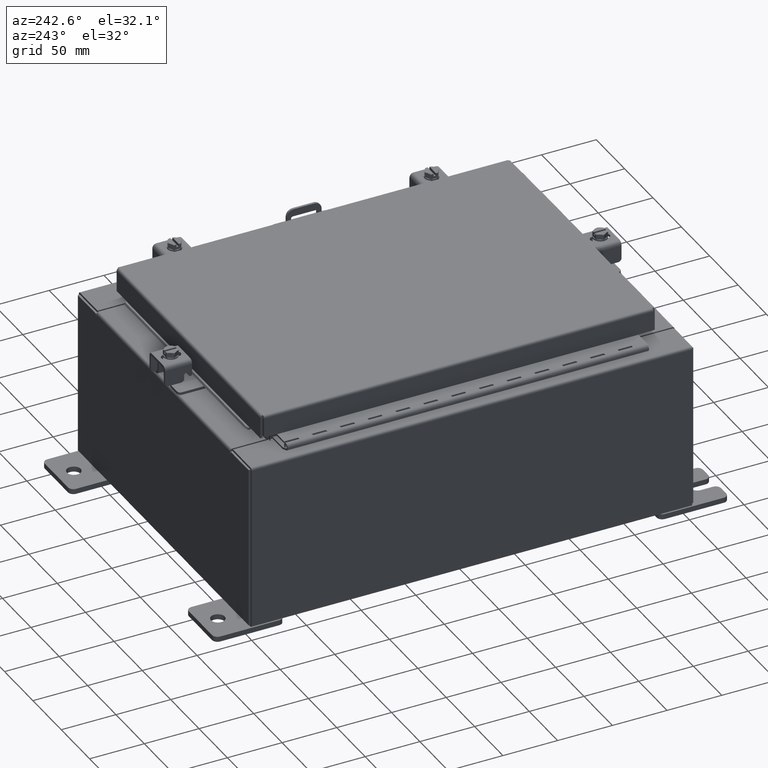
[diagram: clean part render]
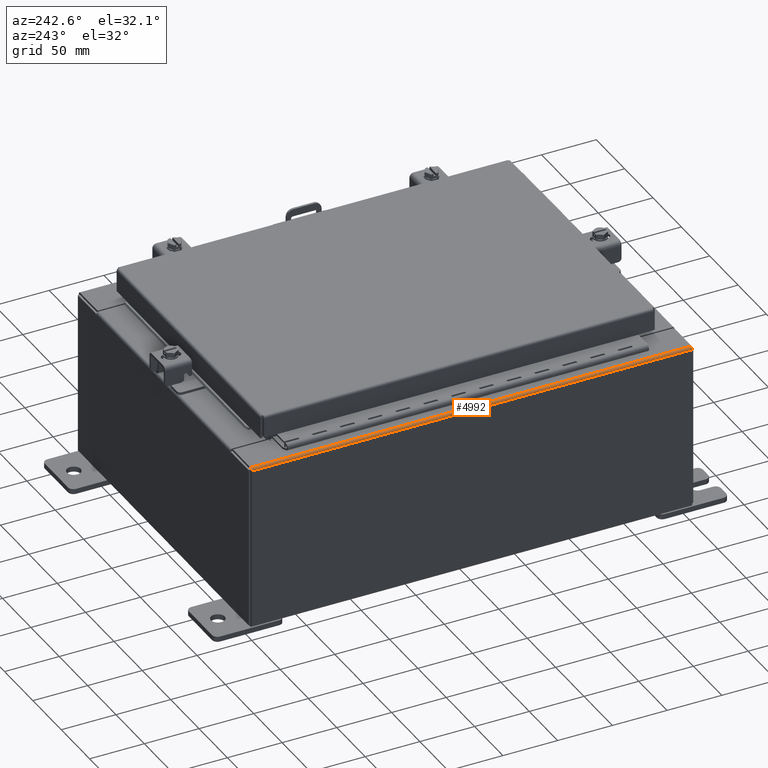
[diagram: same view with one face highlighted and labeled with its STEP entity id]
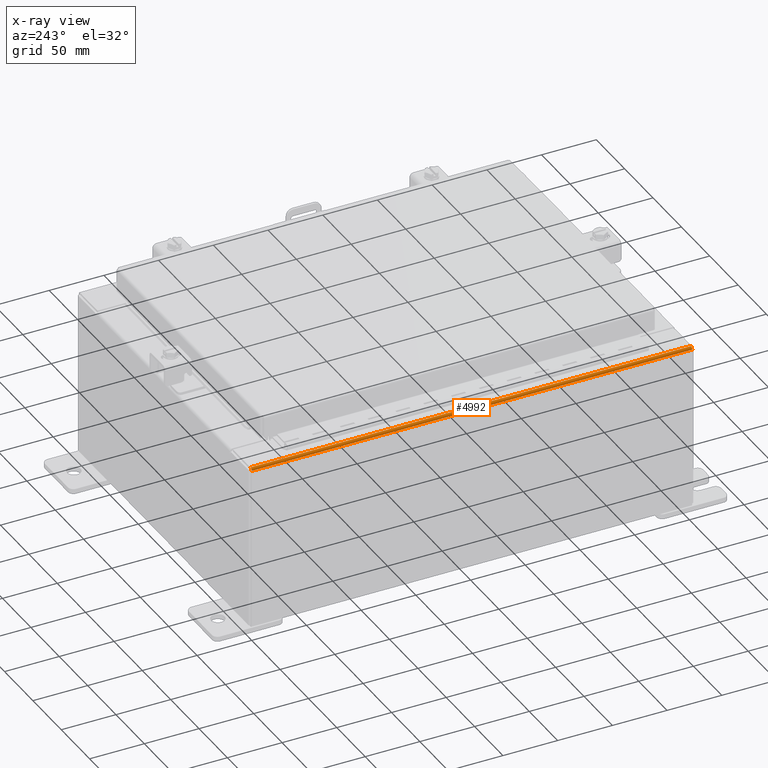
[diagram: x-ray of the same camera — body ghosted, the highlighted face saturated]
A machine part, auxiliary view. The second image highlights one B-rep face of the part: STEP entity #4992.
The next image is the same camera in x-ray: the body ghosted, the highlighted face saturated — about 0% of this face is hidden behind the body in this view.
In plain terms, the highlighted cylindrical surface (edge-blend (fillet) strip) has radius 2.2276 mm, axis along (-0, -1, -0).
Its self-contained STEP definition (entity closure, byte-faithful):
#354 = EDGE_CURVE ( 'NONE', #21959, #13537, #9484, .T. ) ;
#2276 = ORIENTED_EDGE ( 'NONE', *, *, #354, .F. ) ;
#2824 = ORIENTED_EDGE ( 'NONE', *, *, #24592, .T. ) ;
#3621 = LINE ( 'NONE', #8636, #4245 ) ;
#4022 = CIRCLE ( 'NONE', #8791, 0.08770000000000026400 ) ;
#4161 = DIRECTION ( 'NONE',  ( -1.245996804407870000E-014, 0.0000000000000000000, 1.000000000000000000 ) ) ;
#4245 = VECTOR ( 'NONE', #6627, 39.37007874015748100 ) ;
#4273 = EDGE_CURVE ( 'NONE', #13537, #20163, #16311, .T. ) ;
#4696 = DIRECTION ( 'NONE',  ( 0.0000000000000000000, 1.000000000000000000, 0.0000000000000000000 ) ) ;
#4992 = ADVANCED_FACE ( 'NONE', ( #11263 ), #21311, .T. ) ;
#5128 = EDGE_CURVE ( 'NONE', #20163, #24251, #4022, .T. ) ;
#6018 = ORIENTED_EDGE ( 'NONE', *, *, #5128, .F. ) ;
#6190 = CARTESIAN_POINT ( 'NONE',  ( -5.912300000000023200, -7.925300000000000900, 5.837599999999999200 ) ) ;
#6627 = DIRECTION ( 'NONE',  ( 6.893992640440775600E-017, 1.000000000000000000, 4.917321139196952400E-031 ) ) ;
#6835 = CARTESIAN_POINT ( 'NONE',  ( -5.912300000000023200, -7.925300000000000000, 5.925299999999999100 ) ) ;
#7820 = DIRECTION ( 'NONE',  ( -0.0000000000000000000, -1.000000000000000000, -0.0000000000000000000 ) ) ;
#8400 = CARTESIAN_POINT ( 'NONE',  ( -5.912300000000023200, 7.925299999999998200, 5.925299999999999100 ) ) ;
#8636 = CARTESIAN_POINT ( 'NONE',  ( -5.912300000000022300, 7.925299999999998200, 5.925299999999999100 ) ) ;
#8671 = CARTESIAN_POINT ( 'NONE',  ( -6.000000000000023100, -7.925300000000000000, 5.837599999999999200 ) ) ;
#8791 = AXIS2_PLACEMENT_3D ( 'NONE', #16691, #4696, #18739 ) ;
#9214 = AXIS2_PLACEMENT_3D ( 'NONE', #19877, #7820, #21884 ) ;
#9484 = CIRCLE ( 'NONE', #9214, 0.08770000000000026400 ) ;
#10211 = DIRECTION ( 'NONE',  ( -0.0000000000000000000, -1.000000000000000000, -0.0000000000000000000 ) ) ;
#11263 = FACE_OUTER_BOUND ( 'NONE', #24560, .T. ) ;
#13537 = VERTEX_POINT ( 'NONE', #8671 ) ;
#15679 = VECTOR ( 'NONE', #21049, 39.37007874015748100 ) ;
#16215 = ORIENTED_EDGE ( 'NONE', *, *, #4273, .F. ) ;
#16311 = LINE ( 'NONE', #18942, #15679 ) ;
#16691 = CARTESIAN_POINT ( 'NONE',  ( -5.912300000000023200, 7.925299999999998200, 5.837599999999999200 ) ) ;
#18739 = DIRECTION ( 'NONE',  ( 0.0000000000000000000, 0.0000000000000000000, -1.000000000000000000 ) ) ;
#18942 = CARTESIAN_POINT ( 'NONE',  ( -6.000000000000023100, -7.925300000000000900, 5.837599999999999200 ) ) ;
#19877 = CARTESIAN_POINT ( 'NONE',  ( -5.912300000000023200, -7.925300000000000000, 5.837599999999999200 ) ) ;
#20163 = VERTEX_POINT ( 'NONE', #23079 ) ;
#21049 = DIRECTION ( 'NONE',  ( 0.0000000000000000000, 1.000000000000000000, 0.0000000000000000000 ) ) ;
#21311 = CYLINDRICAL_SURFACE ( 'NONE', #24118, 0.08770000000000026400 ) ;
#21884 = DIRECTION ( 'NONE',  ( 0.0000000000000000000, 0.0000000000000000000, -1.000000000000000000 ) ) ;
#21959 = VERTEX_POINT ( 'NONE', #6835 ) ;
#23079 = CARTESIAN_POINT ( 'NONE',  ( -6.000000000000022200, 7.925299999999998200, 5.837599999999999200 ) ) ;
#24118 = AXIS2_PLACEMENT_3D ( 'NONE', #6190, #10211, #4161 ) ;
#24251 = VERTEX_POINT ( 'NONE', #8400 ) ;
#24560 = EDGE_LOOP ( 'NONE', ( #16215, #2276, #2824, #6018 ) ) ;
#24592 = EDGE_CURVE ( 'NONE', #21959, #24251, #3621, .T. ) ;